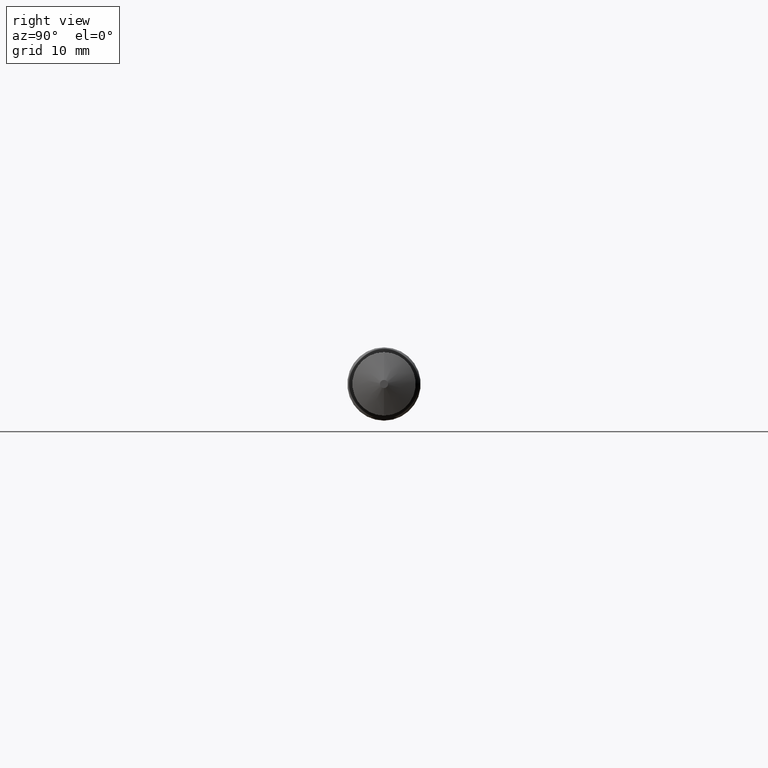
[diagram: clean part render]
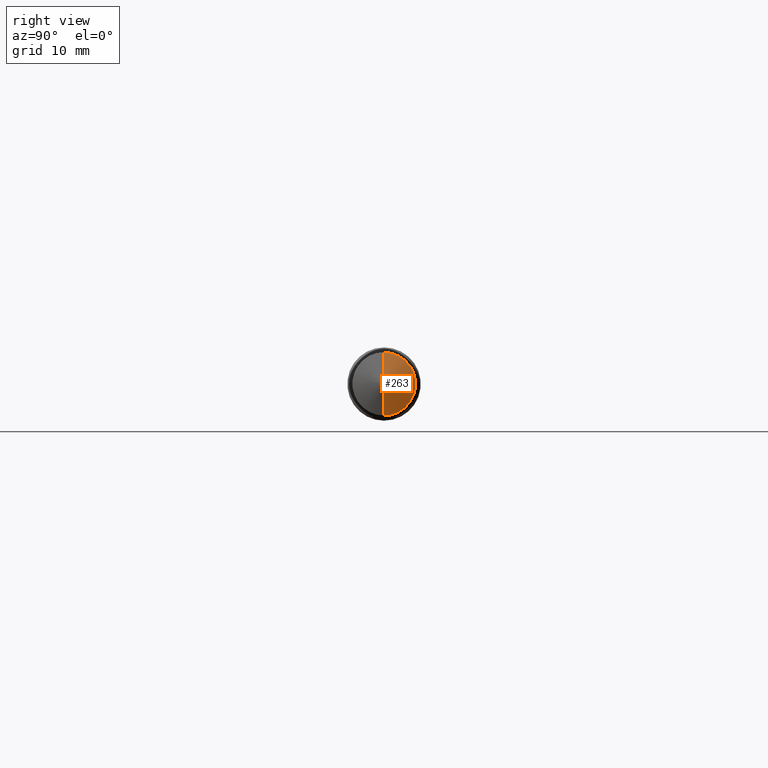
[diagram: same view with one face highlighted and labeled with its STEP entity id]
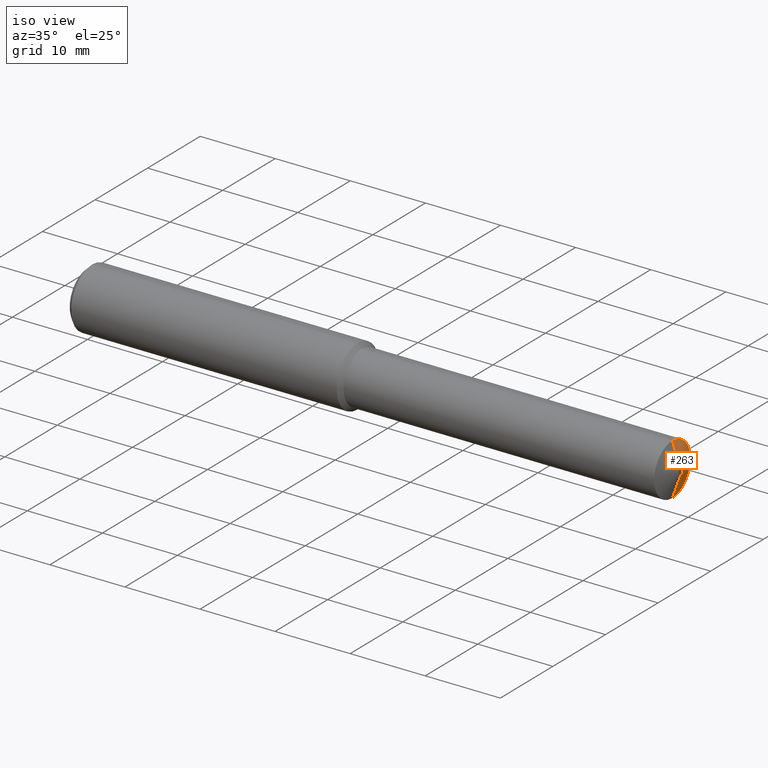
[diagram: same view with one face highlighted and labeled with its STEP entity id]
A machine part, right view. The second image highlights one B-rep face of the part: STEP entity #263.
A second angle (iso view) of the same face is appended — the face is thin or edge-on in the first view.
In plain terms, the highlighted conical surface has half-angle 70 deg.
Its self-contained STEP definition (entity closure, byte-faithful):
#9 = ORIENTED_EDGE ( 'NONE', *, *, #309, .T. ) ;
#11 = VERTEX_POINT ( 'NONE', #312 ) ;
#12 = CIRCLE ( 'NONE', #315, 0.01750000000000038677 ) ;
#35 = ORIENTED_EDGE ( 'NONE', *, *, #374, .F. ) ;
#41 = VERTEX_POINT ( 'NONE', #333 ) ;
#46 = EDGE_CURVE ( 'NONE', #270, #41, #370, .T. ) ;
#48 = VECTOR ( 'NONE', #51, 39.37007874015748854 ) ;
#49 = CARTESIAN_POINT ( 'NONE',  ( 3.110236220472441193, 0.000000000000000000, 0.01750000000000038677 ) ) ;
#51 = DIRECTION ( 'NONE',  ( -0.3420201433256656598, 1.150791560227851502E-16, -0.9396926207859094271 ) ) ;
#56 = DIRECTION ( 'NONE',  ( 0.000000000000000000, 0.000000000000000000, 1.000000000000000000 ) ) ;
#72 = DIRECTION ( 'NONE',  ( 0.000000000000000000, 0.000000000000000000, -1.000000000000000000 ) ) ;
#85 = LINE ( 'NONE', #377, #48 ) ;
#88 = DIRECTION ( 'NONE',  ( 0.000000000000000000, 0.000000000000000000, -1.000000000000000000 ) ) ;
#116 = CARTESIAN_POINT ( 'NONE',  ( 3.110236220472441193, 0.000000000000000000, 0.000000000000000000 ) ) ;
#119 = DIRECTION ( 'NONE',  ( -1.000000000000000000, 0.000000000000000000, 0.000000000000000000 ) ) ;
#129 = DIRECTION ( 'NONE',  ( 1.000000000000000000, -0.000000000000000000, -0.000000000000000000 ) ) ;
#156 = ORIENTED_EDGE ( 'NONE', *, *, #46, .F. ) ;
#193 = AXIS2_PLACEMENT_3D ( 'NONE', #116, #119, #56 ) ;
#196 = EDGE_CURVE ( 'NONE', #362, #11, #85, .T. ) ;
#211 = AXIS2_PLACEMENT_3D ( 'NONE', #255, #320, #88 ) ;
#228 = CIRCLE ( 'NONE', #211, 0.1360000000000003983 ) ;
#232 = CARTESIAN_POINT ( 'NONE',  ( 3.110236220472441193, 0.000000000000000000, 0.01750000000000038677 ) ) ;
#255 = CARTESIAN_POINT ( 'NONE',  ( 3.067105747711896591, 0.000000000000000000, 0.000000000000000000 ) ) ;
#263 = ADVANCED_FACE ( 'NONE', ( #318 ), #361, .T. ) ;
#270 = VERTEX_POINT ( 'NONE', #232 ) ;
#284 = DIRECTION ( 'NONE',  ( -0.3420201433256656598, 0.000000000000000000, 0.9396926207859094271 ) ) ;
#303 = EDGE_LOOP ( 'NONE', ( #35, #329, #9, #156 ) ) ;
#309 = EDGE_CURVE ( 'NONE', #11, #41, #228, .T. ) ;
#312 = CARTESIAN_POINT ( 'NONE',  ( 3.067105747711896591, 1.665519646840405302E-17, -0.1360000000000003983 ) ) ;
#315 = AXIS2_PLACEMENT_3D ( 'NONE', #328, #129, #72 ) ;
#316 = CARTESIAN_POINT ( 'NONE',  ( 3.110236220472441193, 9.399164183455982845E-18, -0.01750000000000038677 ) ) ;
#318 = FACE_OUTER_BOUND ( 'NONE', #303, .T. ) ;
#319 = VECTOR ( 'NONE', #284, 39.37007874015748854 ) ;
#320 = DIRECTION ( 'NONE',  ( 1.000000000000000000, -0.000000000000000000, -0.000000000000000000 ) ) ;
#328 = CARTESIAN_POINT ( 'NONE',  ( 3.110236220472441193, 0.000000000000000000, 0.000000000000000000 ) ) ;
#329 = ORIENTED_EDGE ( 'NONE', *, *, #196, .T. ) ;
#333 = CARTESIAN_POINT ( 'NONE',  ( 3.067105747711896591, 0.000000000000000000, 0.1360000000000003983 ) ) ;
#361 = CONICAL_SURFACE ( 'NONE', #193, 0.01750000000000038677, 1.221730476396033938 ) ;
#362 = VERTEX_POINT ( 'NONE', #316 ) ;
#370 = LINE ( 'NONE', #49, #319 ) ;
#374 = EDGE_CURVE ( 'NONE', #362, #270, #12, .T. ) ;
#377 = CARTESIAN_POINT ( 'NONE',  ( 3.110236220472441193, 2.143131898507915367E-18, -0.01750000000000038677 ) ) ;